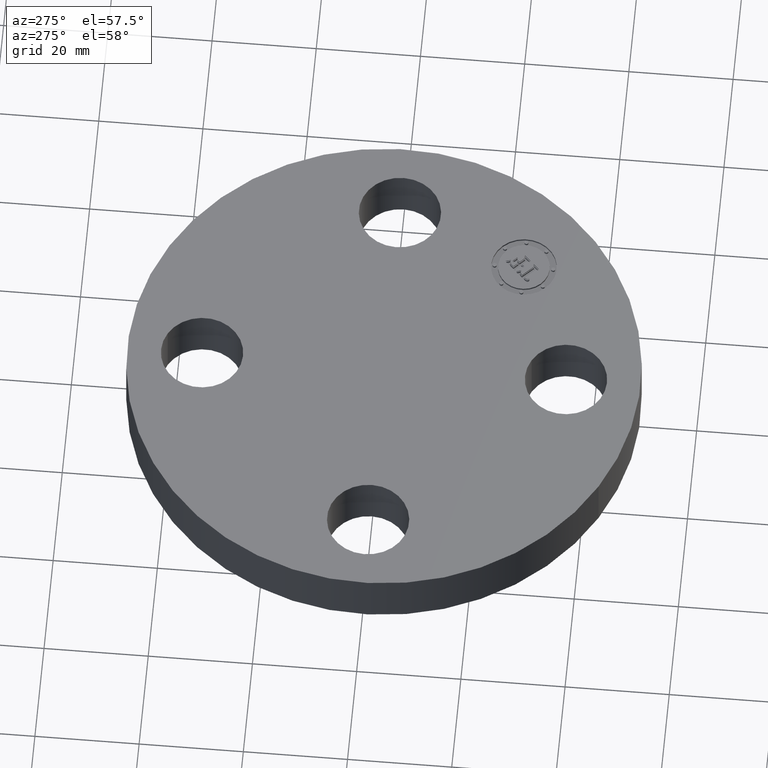
[diagram: clean part render]
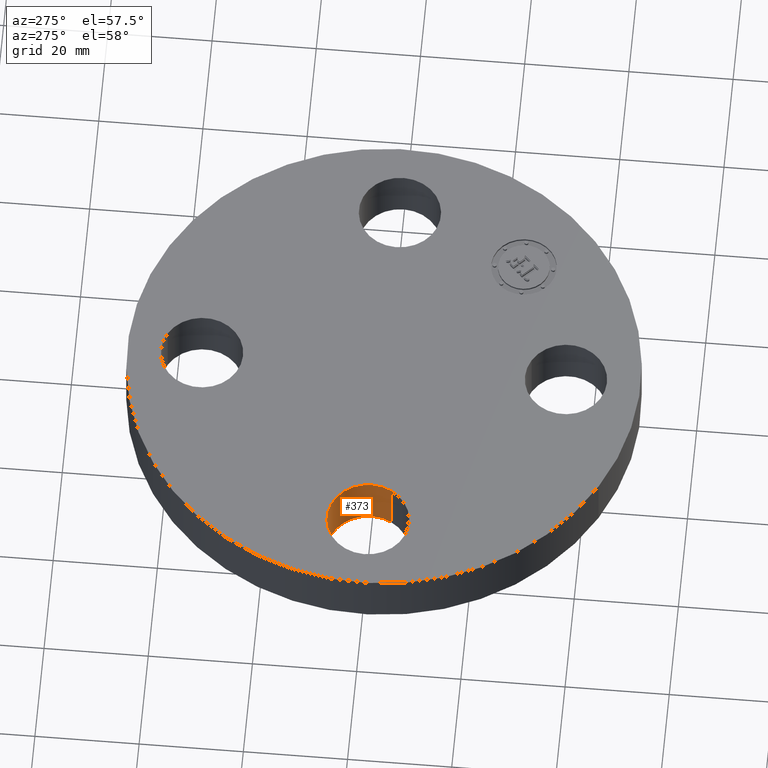
[diagram: same view with one face highlighted and labeled with its STEP entity id]
A machine part, auxiliary view. The second image highlights one B-rep face of the part: STEP entity #373.
In plain terms, the highlighted cylindrical surface (partial cylindrical patch) has radius 7.874 mm, axis along (-0, 0, -1).
Its self-contained STEP definition (entity closure, byte-faithful):
#262=AXIS2_PLACEMENT_3D('Circle Axis2P3D',#260,#261,$) ;
#334=AXIS2_PLACEMENT_3D('Cylinder Axis2P3D',#331,#332,#333) ;
#364=AXIS2_PLACEMENT_3D('Circle Axis2P3D',#362,#363,$) ;
#255=CARTESIAN_POINT('Vertex',(-1.10294940582,-0.148621916968,0.)) ;
#257=CARTESIAN_POINT('Vertex',(-1.64705059419,0.148621916968,0.)) ;
#260=CARTESIAN_POINT('Axis2P3D Location',(-1.37500000001,-1.39870617276E-016,0.)) ;
#331=CARTESIAN_POINT('Axis2P3D Location',(-1.37500000001,-1.68388934883E-016,0.436062992128)) ;
#336=CARTESIAN_POINT('Line Origine',(-1.10294940582,-0.148621916968,0.220000000001)) ;
#340=CARTESIAN_POINT('Vertex',(-1.10294940582,-0.148621916968,0.440000000002)) ;
#343=CARTESIAN_POINT('Line Origine',(-1.64705059419,0.148621916968,0.220000000001)) ;
#347=CARTESIAN_POINT('Vertex',(-1.64705059419,0.148621916968,0.440000000002)) ;
#362=CARTESIAN_POINT('Axis2P3D Location',(-1.37500000001,-1.68388934883E-016,0.440000000002)) ;
#261=DIRECTION('Axis2P3D Direction',(0.,0.,-0.0393700787402)) ;
#332=DIRECTION('Axis2P3D Direction',(-0.,0.,-0.0393700787402)) ;
#333=DIRECTION('Axis2P3D XDirection',(-0.0345504945626,0.0188750212049,0.)) ;
#337=DIRECTION('Vector Direction',(0.,0.,-0.0393700787402)) ;
#344=DIRECTION('Vector Direction',(0.,0.,-0.0393700787402)) ;
#363=DIRECTION('Axis2P3D Direction',(-0.,0.,-0.0393700787402)) ;
#338=VECTOR('Line Direction',#337,0.0393700787402) ;
#345=VECTOR('Line Direction',#344,0.0393700787402) ;
#368=ORIENTED_EDGE('',*,*,#349,.F.) ;
#369=ORIENTED_EDGE('',*,*,#264,.T.) ;
#370=ORIENTED_EDGE('',*,*,#342,.T.) ;
#371=ORIENTED_EDGE('',*,*,#366,.F.) ;
#373=ADVANCED_FACE('PartBody',(#372),#335,.F.) ;
#263=CIRCLE('generated circle',#262,0.310000000001) ;
#365=CIRCLE('generated circle',#364,0.310000000001) ;
#335=CYLINDRICAL_SURFACE('generated cylinder',#334,0.310000000001) ;
#264=EDGE_CURVE('',#258,#256,#263,.T.) ;
#342=EDGE_CURVE('',#256,#341,#339,.F.) ;
#349=EDGE_CURVE('',#258,#348,#346,.F.) ;
#366=EDGE_CURVE('',#348,#341,#365,.T.) ;
#367=EDGE_LOOP('',(#368,#369,#370,#371)) ;
#372=FACE_OUTER_BOUND('',#367,.T.) ;
#339=LINE('Line',#336,#338) ;
#346=LINE('Line',#343,#345) ;
#256=VERTEX_POINT('',#255) ;
#258=VERTEX_POINT('',#257) ;
#341=VERTEX_POINT('',#340) ;
#348=VERTEX_POINT('',#347) ;